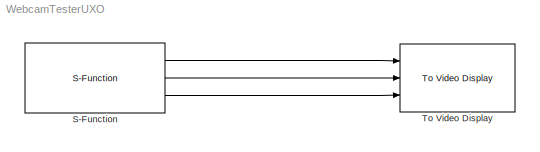
MODEL WebcamTesterUXO
KIND model
BLOCK [S-Function] S-Function
  EnableBusSupport = off
  FunctionName = WebcamTest
  Ports = [0, 3]
BLOCK [Reference] To Video Display  REF=vipsnks/To Video Display
  DialogControllerArgs = DataTag0
  OutputDevice = On-screen video monitor
  Ports = [3]
  SourceBlock = vipsnks/To Video Display
  SourceType = To Video Display
  dataOrg = Column-major
  fullScreen = off
  imagePorts = Separate color signals
  inputType = Obsolete
  isWindowOpen = off
  openAtMdlStart = on
  saveWindowSize = off
  videoWindowHeight = 480
  videoWindowWidth = 640
  videoWindowX = 1
  videoWindowY = -1
LINE S-Function:1 -> To Video Display:1
LINE S-Function:2 -> To Video Display:2
LINE S-Function:3 -> To Video Display:3
